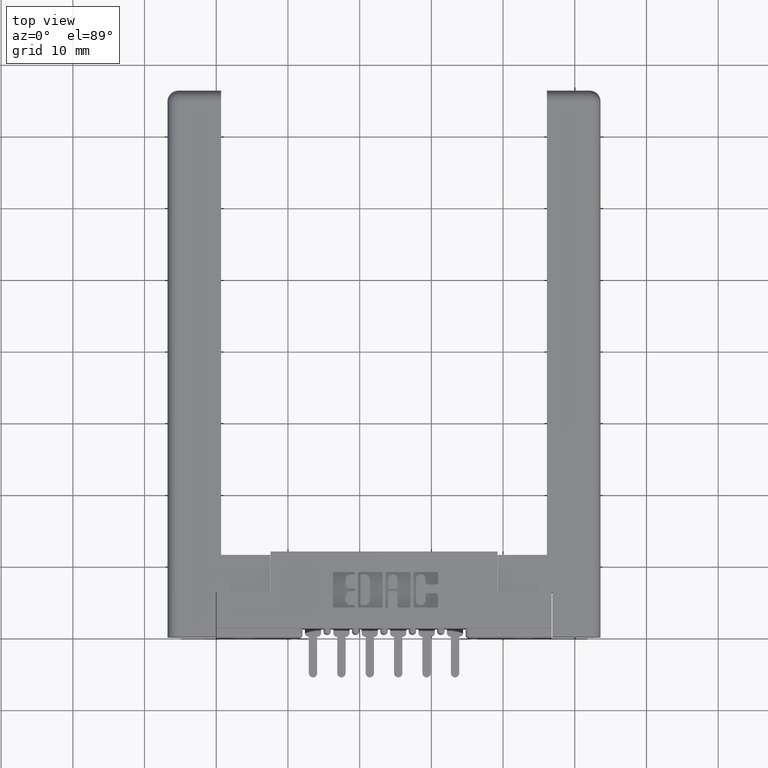
[diagram: clean part render]
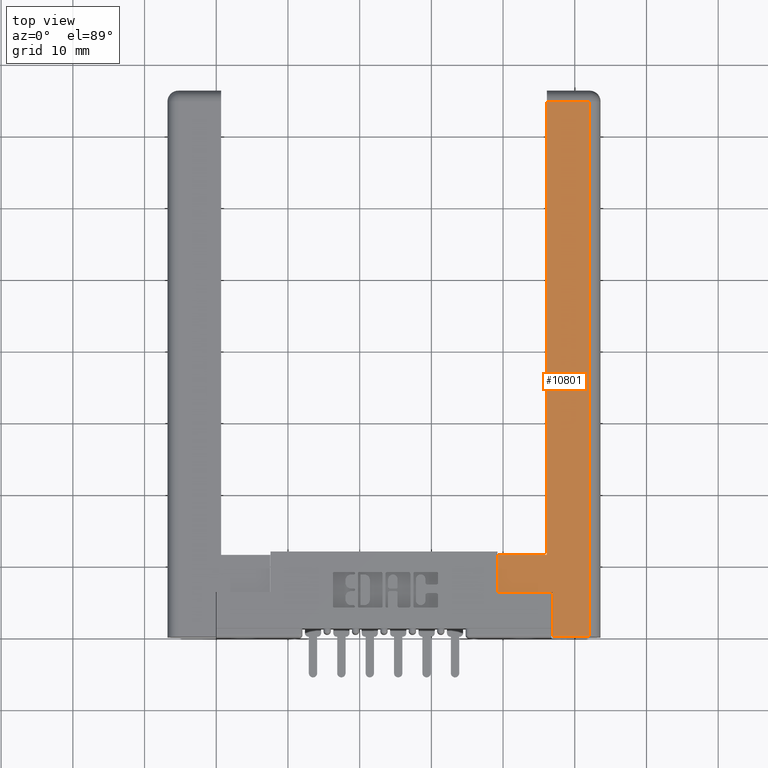
[diagram: same view with one face highlighted and labeled with its STEP entity id]
A machine part, top view. The second image highlights one B-rep face of the part: STEP entity #10801.
In plain terms, the highlighted planar face has unit normal (-0, 0, 1).
Its self-contained STEP definition (entity closure, byte-faithful):
#20 = ORIENTED_EDGE ( 'NONE', *, *, #4871, .F. ) ;
#109 = DIRECTION ( 'NONE',  ( 4.510281037539655900E-017, 2.334284690065026700E-016, -1.000000000000000000 ) ) ;
#565 = ORIENTED_EDGE ( 'NONE', *, *, #3420, .F. ) ;
#628 = VERTEX_POINT ( 'NONE', #1575 ) ;
#857 = VECTOR ( 'NONE', #8229, 39.37007874015748100 ) ;
#1323 = ORIENTED_EDGE ( 'NONE', *, *, #2293, .F. ) ;
#1463 = LINE ( 'NONE', #2594, #12096 ) ;
#1575 = CARTESIAN_POINT ( 'NONE',  ( 0.2950000000000062600, 0.4500000000000002300, -0.3400000000000031900 ) ) ;
#2108 = ORIENTED_EDGE ( 'NONE', *, *, #3512, .T. ) ;
#2178 = CARTESIAN_POINT ( 'NONE',  ( 0.5650000000000067200, 0.2450000000000008600, -0.3400000000000018600 ) ) ;
#2293 = EDGE_CURVE ( 'NONE', #7576, #5126, #4952, .T. ) ;
#2406 = LINE ( 'NONE', #12033, #12153 ) ;
#2594 = CARTESIAN_POINT ( 'NONE',  ( 0.2650000000000033400, 2.785204399790518600E-016, -0.3400000000000031900 ) ) ;
#2607 = EDGE_CURVE ( 'NONE', #5126, #628, #6267, .T. ) ;
#3205 = CARTESIAN_POINT ( 'NONE',  ( 0.2950000000000062600, 0.4500000000000002300, -0.3400000000000031900 ) ) ;
#3420 = EDGE_CURVE ( 'NONE', #8711, #11392, #5018, .T. ) ;
#3512 = EDGE_CURVE ( 'NONE', #5297, #10706, #6640, .T. ) ;
#3855 = DIRECTION ( 'NONE',  ( -1.000000000000000000, -7.120336040201832800E-016, -4.510281037539672600E-017 ) ) ;
#3991 = CARTESIAN_POINT ( 'NONE',  ( 0.5650000000000069400, 0.4500000000000004000, -0.3400000000000018600 ) ) ;
#4275 = CARTESIAN_POINT ( 'NONE',  ( 0.5650000000000067200, 0.2450000000000008600, -0.3400000000000018600 ) ) ;
#4278 = CARTESIAN_POINT ( 'NONE',  ( 0.06150000000000370400, 2.940000000000007100, -0.3400000000000031900 ) ) ;
#4435 = CARTESIAN_POINT ( 'NONE',  ( 3.551402391763542400E-015, 2.940000000000007100, -0.3400000000000031900 ) ) ;
#4534 = VECTOR ( 'NONE', #10302, 39.37007874015748100 ) ;
#4580 = CARTESIAN_POINT ( 'NONE',  ( 0.2650000000000063400, 0.2450000000000000500, -0.3400000000000031900 ) ) ;
#4871 = EDGE_CURVE ( 'NONE', #8885, #8711, #1463, .T. ) ;
#4952 = LINE ( 'NONE', #11065, #857 ) ;
#5018 = LINE ( 'NONE', #8133, #9908 ) ;
#5126 = VERTEX_POINT ( 'NONE', #3991 ) ;
#5194 = VECTOR ( 'NONE', #5209, 39.37007874015748100 ) ;
#5209 = DIRECTION ( 'NONE',  ( 1.000000000000000000, 8.258606037561937000E-016, 4.510281037539667600E-017 ) ) ;
#5297 = VERTEX_POINT ( 'NONE', #4278 ) ;
#6083 = LINE ( 'NONE', #4275, #5194 ) ;
#6152 = LINE ( 'NONE', #8326, #4534 ) ;
#6267 = LINE ( 'NONE', #3205, #9503 ) ;
#6296 = CARTESIAN_POINT ( 'NONE',  ( 0.2650000000000033400, 2.785204399790518600E-016, -0.3400000000000031900 ) ) ;
#6640 = LINE ( 'NONE', #4435, #9590 ) ;
#6983 = CARTESIAN_POINT ( 'NONE',  ( 0.06150000000000015200, 1.248539903354370400E-016, -0.3400000000000018600 ) ) ;
#7102 = ORIENTED_EDGE ( 'NONE', *, *, #7791, .T. ) ;
#7364 = DIRECTION ( 'NONE',  ( 1.000000000000000000, 7.164262422741187300E-016, 4.510281037539672600E-017 ) ) ;
#7576 = VERTEX_POINT ( 'NONE', #2178 ) ;
#7701 = EDGE_CURVE ( 'NONE', #11392, #7576, #6083, .T. ) ;
#7791 = EDGE_CURVE ( 'NONE', #8885, #5297, #2406, .T. ) ;
#8053 = DIRECTION ( 'NONE',  ( 5.726536043434383500E-016, 1.000000000000000000, -2.334284690065039000E-016 ) ) ;
#8133 = CARTESIAN_POINT ( 'NONE',  ( 0.2650000000000063400, 0.2450000000000000500, -0.3400000000000031900 ) ) ;
#8229 = DIRECTION ( 'NONE',  ( 1.045185798369489500E-015, 1.000000000000000000, -2.334284690065038500E-016 ) ) ;
#8326 = CARTESIAN_POINT ( 'NONE',  ( 0.2950000000000065300, 3.000000000000006700, -0.3400000000000031900 ) ) ;
#8548 = CARTESIAN_POINT ( 'NONE',  ( 0.2950000000000065300, 2.940000000000007100, -0.3400000000000031900 ) ) ;
#8711 = VERTEX_POINT ( 'NONE', #6296 ) ;
#8885 = VERTEX_POINT ( 'NONE', #6983 ) ;
#9503 = VECTOR ( 'NONE', #11580, 39.37007874015748100 ) ;
#9590 = VECTOR ( 'NONE', #11963, 39.37007874015748100 ) ;
#9908 = VECTOR ( 'NONE', #8053, 39.37007874015748100 ) ;
#10015 = FACE_OUTER_BOUND ( 'NONE', #11289, .T. ) ;
#10018 = ORIENTED_EDGE ( 'NONE', *, *, #7701, .F. ) ;
#10098 = ORIENTED_EDGE ( 'NONE', *, *, #11029, .F. ) ;
#10299 = AXIS2_PLACEMENT_3D ( 'NONE', #10431, #109, #3855 ) ;
#10302 = DIRECTION ( 'NONE',  ( 5.915108984173514200E-016, 1.000000000000000000, -2.334284690065039000E-016 ) ) ;
#10431 = CARTESIAN_POINT ( 'NONE',  ( 0.0000000000000000000, 8.323599355695802500E-017, -0.3400000000000018600 ) ) ;
#10706 = VERTEX_POINT ( 'NONE', #8548 ) ;
#10801 = ADVANCED_FACE ( 'NONE', ( #10015 ), #11686, .T. ) ;
#10827 = ORIENTED_EDGE ( 'NONE', *, *, #2607, .F. ) ;
#10994 = DIRECTION ( 'NONE',  ( 7.120336040201873200E-016, 1.000000000000000000, -2.334284690065040000E-016 ) ) ;
#11029 = EDGE_CURVE ( 'NONE', #628, #10706, #6152, .T. ) ;
#11065 = CARTESIAN_POINT ( 'NONE',  ( 0.5650000000000069400, 0.4500000000000004000, -0.3400000000000018600 ) ) ;
#11289 = EDGE_LOOP ( 'NONE', ( #7102, #2108, #10098, #10827, #1323, #10018, #565, #20 ) ) ;
#11392 = VERTEX_POINT ( 'NONE', #4580 ) ;
#11580 = DIRECTION ( 'NONE',  ( -1.000000000000000000, -7.120336040201832800E-016, -4.510281037539672600E-017 ) ) ;
#11686 = PLANE ( 'NONE',  #10299 ) ;
#11963 = DIRECTION ( 'NONE',  ( 1.000000000000000000, 7.120336040201832800E-016, 4.510281037539672600E-017 ) ) ;
#12033 = CARTESIAN_POINT ( 'NONE',  ( 0.06150000000000015200, 1.248539903354370400E-016, -0.3400000000000018600 ) ) ;
#12096 = VECTOR ( 'NONE', #7364, 39.37007874015748100 ) ;
#12153 = VECTOR ( 'NONE', #10994, 39.37007874015748100 ) ;